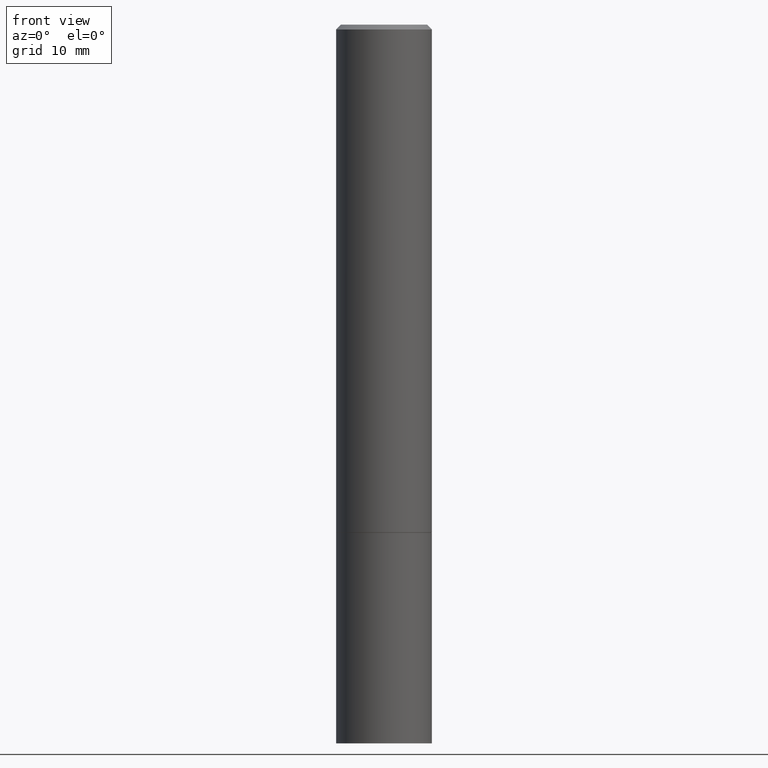
[diagram: clean part render]
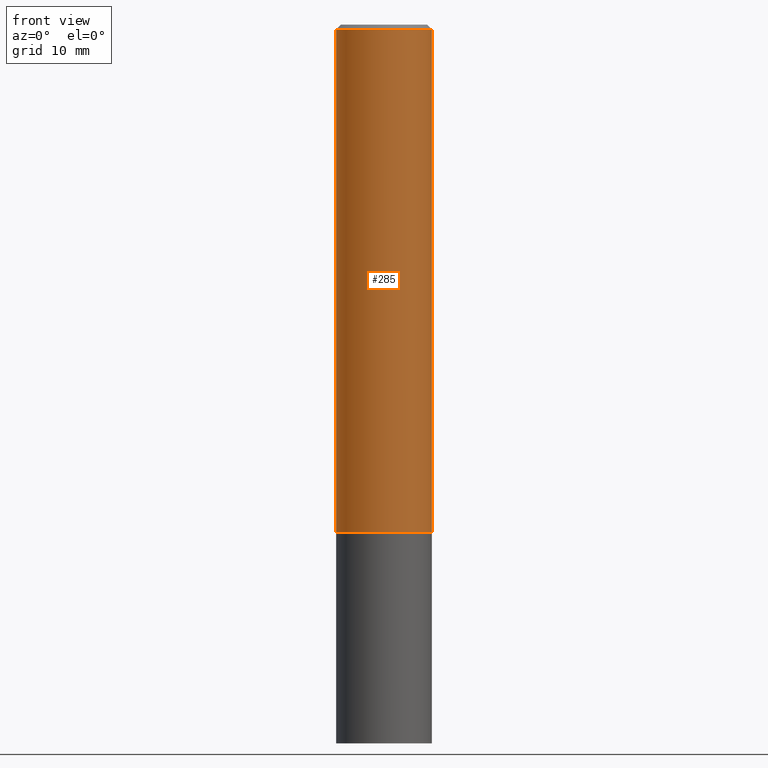
[diagram: same view with one face highlighted and labeled with its STEP entity id]
A machine part, front view. The second image highlights one B-rep face of the part: STEP entity #285.
In plain terms, the highlighted cylindrical surface (partial cylindrical patch) has radius 5 mm, axis along (-0, 0, 1).
Its self-contained STEP definition (entity closure, byte-faithful):
#7 = CIRCLE ( 'NONE', #295, 0.1968499999999997752 ) ;
#29 = VERTEX_POINT ( 'NONE', #149 ) ;
#59 = ORIENTED_EDGE ( 'NONE', *, *, #76, .F. ) ;
#64 = CARTESIAN_POINT ( 'NONE',  ( -0.1968499999999999139, 1.398703375343756604E-15, -9.682923725166778072E-30 ) ) ;
#71 = CARTESIAN_POINT ( 'NONE',  ( 0.1968499999999997752, -1.420318657638187347E-15, -0.02000000000000001776 ) ) ;
#76 = EDGE_CURVE ( 'NONE', #29, #261, #7, .T. ) ;
#94 = DIRECTION ( 'NONE',  ( -2.445468806185136597E-29, 3.491481338843145583E-15, 1.000000000000000000 ) ) ;
#95 = ORIENTED_EDGE ( 'NONE', *, *, #142, .T. ) ;
#102 = DIRECTION ( 'NONE',  ( -2.445468806185136877E-29, 3.491481338843145188E-15, 1.000000000000000000 ) ) ;
#105 = DIRECTION ( 'NONE',  ( -2.445468806185136597E-29, 3.491481338843145583E-15, 1.000000000000000000 ) ) ;
#106 = VERTEX_POINT ( 'NONE', #264 ) ;
#111 = DIRECTION ( 'NONE',  ( 1.000000000000000000, -6.982962677686266711E-15, 0.000000000000000000 ) ) ;
#131 = EDGE_CURVE ( 'NONE', #232, #29, #209, .T. ) ;
#134 = AXIS2_PLACEMENT_3D ( 'NONE', #361, #105, #333 ) ;
#136 = CARTESIAN_POINT ( 'NONE',  ( -0.1968500000000000250, -2.277302752257247033E-15, -2.085699999999999665 ) ) ;
#142 = EDGE_CURVE ( 'NONE', #232, #106, #309, .T. ) ;
#149 = CARTESIAN_POINT ( 'NONE',  ( -0.1968499999999997752, 1.304766576325677127E-15, -0.02000000000000001776 ) ) ;
#150 = CARTESIAN_POINT ( 'NONE',  ( 5.100514289060338336E-29, -7.282182628425147921E-15, -2.085699999999999665 ) ) ;
#157 = DIRECTION ( 'NONE',  ( -2.445468806185136597E-29, 3.491481338843145583E-15, 1.000000000000000000 ) ) ;
#161 = CYLINDRICAL_SURFACE ( 'NONE', #134, 0.1968499999999999139 ) ;
#163 = FACE_OUTER_BOUND ( 'NONE', #195, .T. ) ;
#175 = DIRECTION ( 'NONE',  ( -2.445468806185136877E-29, 3.491481338843145188E-15, 1.000000000000000000 ) ) ;
#189 = ORIENTED_EDGE ( 'NONE', *, *, #198, .T. ) ;
#195 = EDGE_LOOP ( 'NONE', ( #237, #95, #189, #59 ) ) ;
#198 = EDGE_CURVE ( 'NONE', #106, #261, #220, .T. ) ;
#209 = LINE ( 'NONE', #64, #350 ) ;
#216 = CARTESIAN_POINT ( 'NONE',  ( 4.890937612370276662E-31, -6.982962677686296539E-17, -0.02000000000000001776 ) ) ;
#220 = LINE ( 'NONE', #355, #224 ) ;
#224 = VECTOR ( 'NONE', #102, 39.37007874015748143 ) ;
#232 = VERTEX_POINT ( 'NONE', #136 ) ;
#237 = ORIENTED_EDGE ( 'NONE', *, *, #131, .F. ) ;
#260 = AXIS2_PLACEMENT_3D ( 'NONE', #150, #94, #297 ) ;
#261 = VERTEX_POINT ( 'NONE', #71 ) ;
#264 = CARTESIAN_POINT ( 'NONE',  ( 0.1968500000000000250, -8.656778831527691107E-15, -2.085699999999999665 ) ) ;
#285 = ADVANCED_FACE ( 'NONE', ( #163 ), #161, .T. ) ;
#295 = AXIS2_PLACEMENT_3D ( 'NONE', #216, #157, #111 ) ;
#297 = DIRECTION ( 'NONE',  ( 1.000000000000000000, -6.982962677686267499E-15, 0.000000000000000000 ) ) ;
#309 = CIRCLE ( 'NONE', #260, 0.1968500000000000250 ) ;
#333 = DIRECTION ( 'NONE',  ( 1.000000000000000000, -6.982962677686266711E-15, 4.876176775795935793E-29 ) ) ;
#350 = VECTOR ( 'NONE', #175, 39.37007874015748143 ) ;
#355 = CARTESIAN_POINT ( 'NONE',  ( 0.1968499999999999139, -1.374596203102541017E-15, 9.598753983154295253E-30 ) ) ;
#361 = CARTESIAN_POINT ( 'NONE',  ( 0.000000000000000000, 0.000000000000000000, 0.000000000000000000 ) ) ;